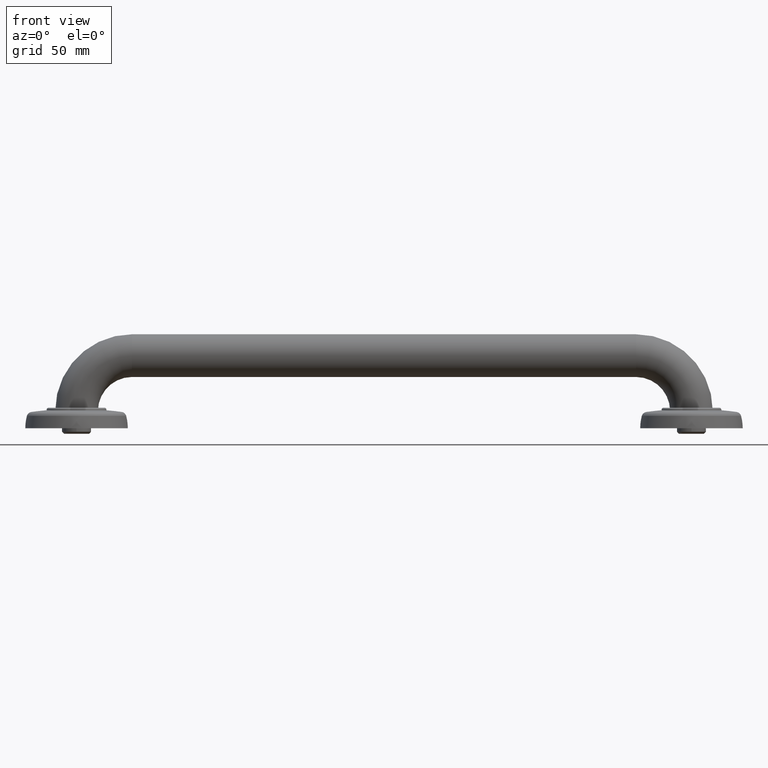
[diagram: clean part render]
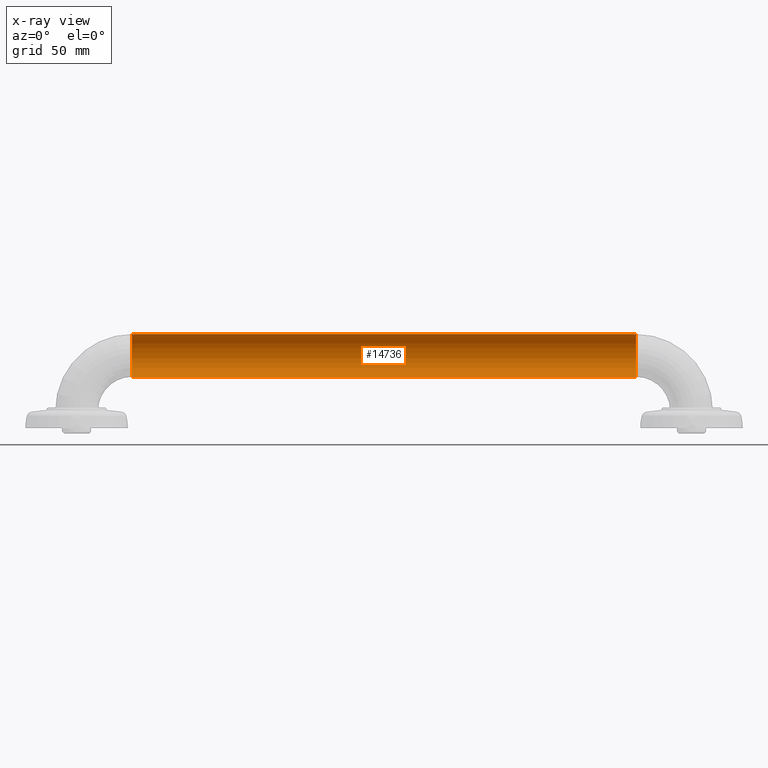
[diagram: x-ray — body ghosted, one internal face saturated and labeled with its STEP entity id]
A machine part, front view, then the same camera in x-ray: the body is ghosted and one INTERNAL B-rep face — a face not visible from any outside direction — is saturated and labeled: STEP entity #14736.
In plain terms, the highlighted cylindrical surface (edge-blend (fillet) strip) has radius 15.875 mm, axis along (1, 0, 0).
Its self-contained STEP definition (entity closure, byte-faithful):
#14574=CARTESIAN_POINT('',(-7.375E0,0.E0,0.E0));
#14575=DIRECTION('',(1.E0,0.E0,0.E0));
#14576=DIRECTION('',(0.E0,0.E0,-1.E0));
#14577=AXIS2_PLACEMENT_3D('',#14574,#14575,#14576);
#14579=DIRECTION('',(1.E0,0.E0,0.E0));
#14580=VECTOR('',#14579,1.475E1);
#14581=CARTESIAN_POINT('',(-7.375E0,0.E0,-6.25E-1));
#14582=LINE('',#14581,#14580);
#14588=DIRECTION('',(1.E0,0.E0,0.E0));
#14589=VECTOR('',#14588,1.475E1);
#14590=CARTESIAN_POINT('',(-7.375E0,0.E0,6.25E-1));
#14591=LINE('',#14590,#14589);
#14602=CARTESIAN_POINT('',(7.375E0,0.E0,0.E0));
#14603=DIRECTION('',(1.E0,0.E0,0.E0));
#14604=DIRECTION('',(0.E0,0.E0,-1.E0));
#14605=AXIS2_PLACEMENT_3D('',#14602,#14603,#14604);
#14648=CARTESIAN_POINT('',(-7.375E0,0.E0,-6.25E-1));
#14649=CARTESIAN_POINT('',(-7.375E0,0.E0,6.25E-1));
#14650=VERTEX_POINT('',#14648);
#14651=VERTEX_POINT('',#14649);
#14652=CARTESIAN_POINT('',(7.375E0,0.E0,-6.25E-1));
#14653=CARTESIAN_POINT('',(7.375E0,0.E0,6.25E-1));
#14654=VERTEX_POINT('',#14652);
#14655=VERTEX_POINT('',#14653);
#14722=CARTESIAN_POINT('',(-7.375E0,0.E0,0.E0));
#14723=DIRECTION('',(1.E0,0.E0,0.E0));
#14724=DIRECTION('',(0.E0,0.E0,-1.E0));
#14725=AXIS2_PLACEMENT_3D('',#14722,#14723,#14724);
#14726=CYLINDRICAL_SURFACE('',#14725,6.25E-1);
#14727=ORIENTED_EDGE('',*,*,#14716,.F.);
#14729=ORIENTED_EDGE('',*,*,#14728,.T.);
#14731=ORIENTED_EDGE('',*,*,#14730,.T.);
#14733=ORIENTED_EDGE('',*,*,#14732,.F.);
#14734=EDGE_LOOP('',(#14727,#14729,#14731,#14733));
#14735=FACE_OUTER_BOUND('',#14734,.F.);
#14736=ADVANCED_FACE('',(#14735),#14726,.T.);
#14578=CIRCLE('',#14577,6.25E-1);
#14606=CIRCLE('',#14605,6.25E-1);
#14716=EDGE_CURVE('',#14650,#14651,#14578,.T.);
#14728=EDGE_CURVE('',#14650,#14654,#14582,.T.);
#14730=EDGE_CURVE('',#14654,#14655,#14606,.T.);
#14732=EDGE_CURVE('',#14651,#14655,#14591,.T.);